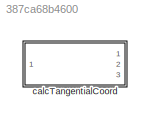
MODEL slx_387ca68b4600
KIND library
CONFIG AbsTol = auto
CONFIG EnableMultiTasking = off
CONFIG FixedStep = auto
CONFIG MaxStep = auto
CONFIG MinStep = auto
CONFIG RelTol = 1e-3
CONFIG SampleTimeConstraint = Unconstrained
CONFIG Solver = VariableStepAuto
CONFIG SolverName = VariableStepAuto
CONFIG StartTime = 0.0
CONFIG StopTime = 10.0
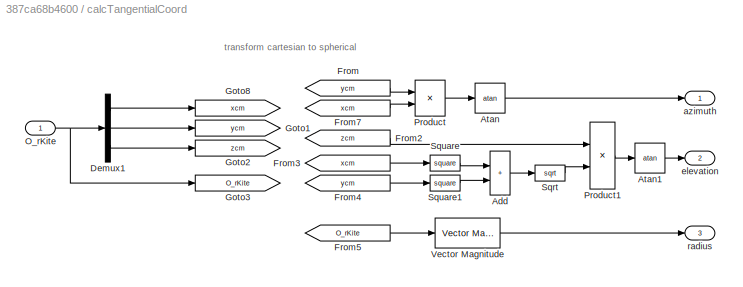
BLOCK [SubSystem] calcTangentialCoord
  Ports = [1, 3]
  RequestExecContextInheritance = off
BLOCK [Sum] calcTangentialCoord/Add
  IconShape = rectangular
  Ports = [2, 1]
BLOCK [Trigonometry] calcTangentialCoord/Atan
  Operator = atan
  Ports = [1, 1]
BLOCK [Trigonometry] calcTangentialCoord/Atan1
  Operator = atan
  Ports = [1, 1]
BLOCK [Demux] calcTangentialCoord/Demux1
  Outputs = 3
  Ports = [1, 3]
BLOCK [From] calcTangentialCoord/From
  GotoTag = ycm
BLOCK [From] calcTangentialCoord/From2
  GotoTag = zcm
BLOCK [From] calcTangentialCoord/From3
  GotoTag = xcm
BLOCK [From] calcTangentialCoord/From4
  GotoTag = ycm
BLOCK [From] calcTangentialCoord/From5
  GotoTag = O_rKite
BLOCK [From] calcTangentialCoord/From7
  GotoTag = xcm
BLOCK [Goto] calcTangentialCoord/Goto1
  GotoTag = ycm
BLOCK [Goto] calcTangentialCoord/Goto2
  GotoTag = zcm
BLOCK [Goto] calcTangentialCoord/Goto3
  GotoTag = O_rKite
BLOCK [Goto] calcTangentialCoord/Goto8
  GotoTag = xcm
BLOCK [Inport] calcTangentialCoord/O_rKite
BLOCK [Product] calcTangentialCoord/Product
  Inputs = */
  Ports = [2, 1]
BLOCK [Product] calcTangentialCoord/Product1
  Inputs = */
  Ports = [2, 1]
BLOCK [Sqrt] calcTangentialCoord/Sqrt
BLOCK [Math] calcTangentialCoord/Square
  Operator = square
  Ports = [1, 1]
BLOCK [Math] calcTangentialCoord/Square1
  Operator = square
  Ports = [1, 1]
BLOCK [Reference] calcTangentialCoord/Vector Magnitude  REF=VectorMagnitude_ul/Vector Magnitude
  Ports = [1, 1]
  SourceBlock = VectorMagnitude_ul/Vector Magnitude
BLOCK [Outport] calcTangentialCoord/azimuth
BLOCK [Outport] calcTangentialCoord/elevation
  Port = 2
BLOCK [Outport] calcTangentialCoord/radius
  Port = 3
ANNOTATION calcTangentialCoord: transform cartesian to spherical
LINE calcTangentialCoord/Add:1 -> calcTangentialCoord/Sqrt:1
LINE calcTangentialCoord/Atan1:1 -> calcTangentialCoord/elevation:1
LINE calcTangentialCoord/Atan:1 -> calcTangentialCoord/azimuth:1
LINE calcTangentialCoord/Demux1:1 -> calcTangentialCoord/Goto8:1
LINE calcTangentialCoord/Demux1:2 -> calcTangentialCoord/Goto1:1
LINE calcTangentialCoord/Demux1:3 -> calcTangentialCoord/Goto2:1
LINE calcTangentialCoord/From2:1 -> calcTangentialCoord/Product1:1
LINE calcTangentialCoord/From3:1 -> calcTangentialCoord/Square:1
LINE calcTangentialCoord/From4:1 -> calcTangentialCoord/Square1:1
LINE calcTangentialCoord/From5:1 -> calcTangentialCoord/Vector Magnitude:1
LINE calcTangentialCoord/From7:1 -> calcTangentialCoord/Product:2
LINE calcTangentialCoord/From:1 -> calcTangentialCoord/Product:1
NET calcTangentialCoord/O_rKite:1 -> calcTangentialCoord/Demux1:1, calcTangentialCoord/Goto3:1
LINE calcTangentialCoord/Product1:1 -> calcTangentialCoord/Atan1:1
LINE calcTangentialCoord/Product:1 -> calcTangentialCoord/Atan:1
LINE calcTangentialCoord/Sqrt:1 -> calcTangentialCoord/Product1:2
LINE calcTangentialCoord/Square1:1 -> calcTangentialCoord/Add:2
LINE calcTangentialCoord/Square:1 -> calcTangentialCoord/Add:1
LINE calcTangentialCoord/Vector Magnitude:1 -> calcTangentialCoord/radius:1
note: NET lines group one-source signal fan-out (src -> all destinations, sorted); 1:1 wires keep LINE
